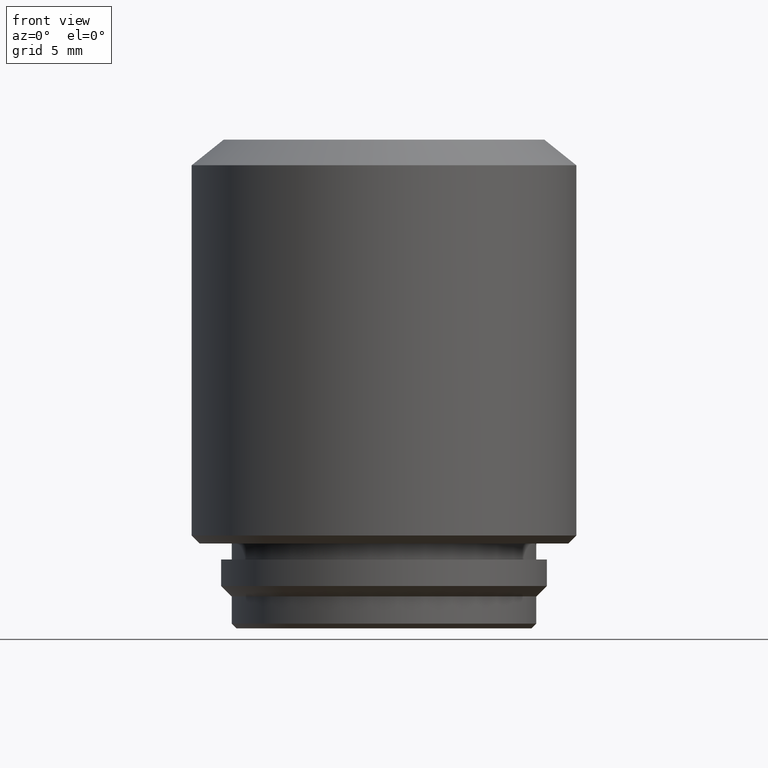
[diagram: clean part render]
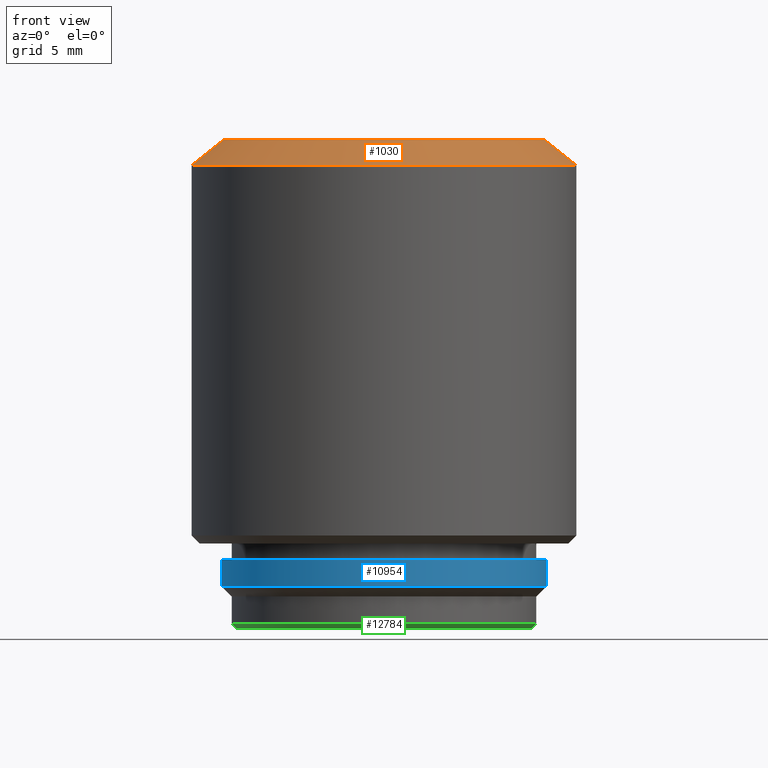
[diagram: same view with three faces highlighted in distinct colors, each labeled with its STEP entity id]
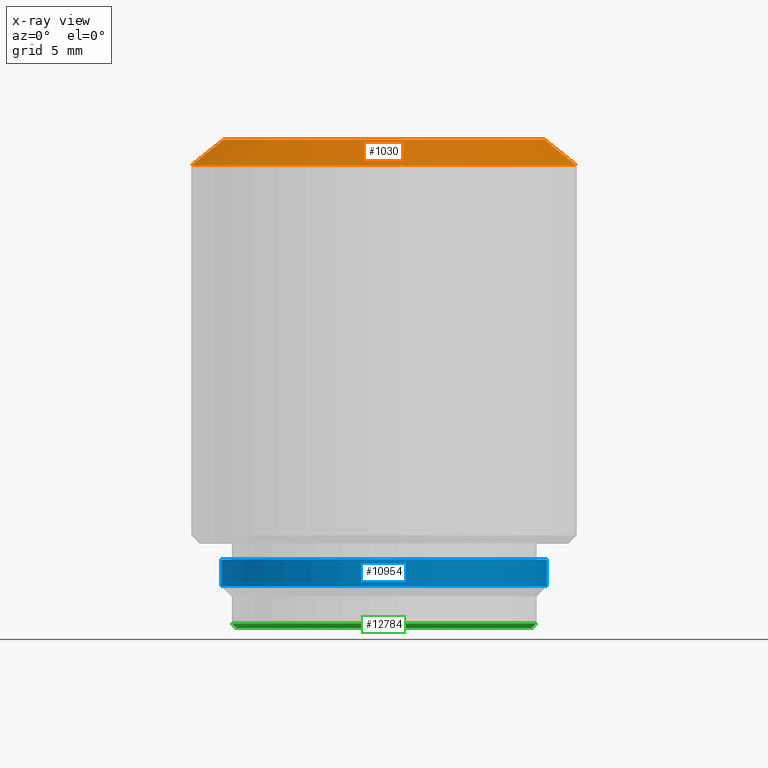
[diagram: x-ray of the same camera — body ghosted, the three highlighted faces saturated]
A machine part, front view with three faces highlighted in distinct colors.
The next image is the same camera in x-ray (body ghosted, the three faces saturated) — at least one of them is partly hidden behind the body in this view.
Their STEP definitions:

[orange] entity #1030 — the highlighted conical surface has half-angle 51.34 deg.
#41 = LINE ( 'NONE', #3168, #11453 ) ;
#1030 = ADVANCED_FACE ( 'NONE', ( #14388 ), #14267, .T. ) ;
#1141 = CIRCLE ( 'NONE', #19206, 10.00000000000000000 ) ;
#1384 = CARTESIAN_POINT ( 'NONE',  ( -10.00000000000000000, 0.000000000000000000, 30.50000000000000000 ) ) ;
#2816 = VECTOR ( 'NONE', #2929, 1000.000000000000114 ) ;
#2929 = DIRECTION ( 'NONE',  ( -0.7808688094430298321, 0.000000000000000000, -0.6246950475544248427 ) ) ;
#3168 = CARTESIAN_POINT ( 'NONE',  ( 10.00000000000000000, 1.224646799147353256E-15, 30.50000000000000000 ) ) ;
#3615 = CARTESIAN_POINT ( 'NONE',  ( 11.99999999999999822, 1.469576158976823750E-15, 28.89999999999999858 ) ) ;
#3854 = EDGE_LOOP ( 'NONE', ( #18130, #8231, #10289, #8056 ) ) ;
#5187 = DIRECTION ( 'NONE',  ( 1.000000000000000000, 0.000000000000000000, 0.000000000000000000 ) ) ;
#5225 = AXIS2_PLACEMENT_3D ( 'NONE', #7060, #11545, #9895 ) ;
#5971 = LINE ( 'NONE', #19214, #2816 ) ;
#6206 = DIRECTION ( 'NONE',  ( 0.7808688094430298321, 9.562884880384109840E-17, -0.6246950475544248427 ) ) ;
#6798 = EDGE_CURVE ( 'NONE', #17699, #12236, #41, .T. ) ;
#7060 = CARTESIAN_POINT ( 'NONE',  ( 0.000000000000000000, 0.000000000000000000, 30.50000000000000000 ) ) ;
#8056 = ORIENTED_EDGE ( 'NONE', *, *, #14443, .F. ) ;
#8130 = CARTESIAN_POINT ( 'NONE',  ( 10.00000000000000000, 1.347111479062088602E-15, 30.50000000000000000 ) ) ;
#8231 = ORIENTED_EDGE ( 'NONE', *, *, #14201, .F. ) ;
#8590 = CARTESIAN_POINT ( 'NONE',  ( 0.000000000000000000, 0.000000000000000000, 28.89999999999999858 ) ) ;
#8877 = DIRECTION ( 'NONE',  ( 1.000000000000000000, 0.000000000000000000, 0.000000000000000000 ) ) ;
#9895 = DIRECTION ( 'NONE',  ( -1.000000000000000000, 0.000000000000000000, 0.000000000000000000 ) ) ;
#10289 = ORIENTED_EDGE ( 'NONE', *, *, #18898, .T. ) ;
#10702 = VERTEX_POINT ( 'NONE', #1384 ) ;
#10849 = CARTESIAN_POINT ( 'NONE',  ( 0.000000000000000000, 0.000000000000000000, 30.50000000000000000 ) ) ;
#11301 = VERTEX_POINT ( 'NONE', #18858 ) ;
#11453 = VECTOR ( 'NONE', #6206, 1000.000000000000114 ) ;
#11545 = DIRECTION ( 'NONE',  ( 0.000000000000000000, 0.000000000000000000, -1.000000000000000000 ) ) ;
#12065 = CIRCLE ( 'NONE', #14560, 12.00000000000000000 ) ;
#12236 = VERTEX_POINT ( 'NONE', #3615 ) ;
#14201 = EDGE_CURVE ( 'NONE', #10702, #17699, #1141, .T. ) ;
#14267 = CONICAL_SURFACE ( 'NONE', #5225, 10.00000000000000000, 0.8960553845713431498 ) ;
#14388 = FACE_OUTER_BOUND ( 'NONE', #3854, .T. ) ;
#14443 = EDGE_CURVE ( 'NONE', #12236, #11301, #12065, .T. ) ;
#14560 = AXIS2_PLACEMENT_3D ( 'NONE', #8590, #16192, #8877 ) ;
#16192 = DIRECTION ( 'NONE',  ( 0.000000000000000000, 0.000000000000000000, -1.000000000000000000 ) ) ;
#16791 = DIRECTION ( 'NONE',  ( 0.000000000000000000, 0.000000000000000000, 1.000000000000000000 ) ) ;
#17699 = VERTEX_POINT ( 'NONE', #8130 ) ;
#18130 = ORIENTED_EDGE ( 'NONE', *, *, #6798, .F. ) ;
#18858 = CARTESIAN_POINT ( 'NONE',  ( -11.99999999999999822, 0.000000000000000000, 28.89999999999999858 ) ) ;
#18898 = EDGE_CURVE ( 'NONE', #10702, #11301, #5971, .T. ) ;
#19206 = AXIS2_PLACEMENT_3D ( 'NONE', #10849, #16791, #5187 ) ;
#19214 = CARTESIAN_POINT ( 'NONE',  ( -10.00000000000000000, 0.000000000000000000, 30.50000000000000000 ) ) ;

[blue] entity #10954 — the highlighted cylindrical surface (partial cylindrical patch) has radius 10.16 mm, axis along (0, 0, -1).
#517 = DIRECTION ( 'NONE',  ( 0.000000000000000000, 0.000000000000000000, -1.000000000000000000 ) ) ;
#1690 = DIRECTION ( 'NONE',  ( 0.000000000000000000, 0.000000000000000000, 1.000000000000000000 ) ) ;
#2529 = ORIENTED_EDGE ( 'NONE', *, *, #16590, .T. ) ;
#2868 = CARTESIAN_POINT ( 'NONE',  ( 0.000000000000000000, 0.000000000000000000, 4.299999999999999822 ) ) ;
#3081 = VERTEX_POINT ( 'NONE', #9122 ) ;
#3455 = ORIENTED_EDGE ( 'NONE', *, *, #9780, .T. ) ;
#3496 = CARTESIAN_POINT ( 'NONE',  ( 0.000000000000000000, 0.000000000000000000, 2.649999999999999911 ) ) ;
#4047 = CIRCLE ( 'NONE', #8427, 10.16000000000000014 ) ;
#4131 = CARTESIAN_POINT ( 'NONE',  ( -10.16000000000000014, 1.244241147933710864E-15, 2.649999999999999911 ) ) ;
#4667 = DIRECTION ( 'NONE',  ( 0.000000000000000000, 0.000000000000000000, 1.000000000000000000 ) ) ;
#4991 = AXIS2_PLACEMENT_3D ( 'NONE', #17952, #14947, #12115 ) ;
#5818 = CIRCLE ( 'NONE', #8318, 10.16000000000000014 ) ;
#8044 = LINE ( 'NONE', #13993, #18282 ) ;
#8318 = AXIS2_PLACEMENT_3D ( 'NONE', #3496, #4667, #9459 ) ;
#8427 = AXIS2_PLACEMENT_3D ( 'NONE', #2868, #1690, #16242 ) ;
#9122 = CARTESIAN_POINT ( 'NONE',  ( 10.16000000000000014, 0.000000000000000000, 2.649999999999999911 ) ) ;
#9459 = DIRECTION ( 'NONE',  ( -1.000000000000000000, 0.000000000000000000, 0.000000000000000000 ) ) ;
#9780 = EDGE_CURVE ( 'NONE', #11996, #3081, #5818, .T. ) ;
#10954 = ADVANCED_FACE ( 'NONE', ( #15043 ), #11920, .T. ) ;
#11489 = CARTESIAN_POINT ( 'NONE',  ( 10.16000000000000014, 1.244241147933710864E-15, 4.299999999999999822 ) ) ;
#11920 = CYLINDRICAL_SURFACE ( 'NONE', #4991, 10.16000000000000014 ) ;
#11996 = VERTEX_POINT ( 'NONE', #4131 ) ;
#12115 = DIRECTION ( 'NONE',  ( -1.000000000000000000, 0.000000000000000000, 0.000000000000000000 ) ) ;
#13872 = EDGE_CURVE ( 'NONE', #14848, #3081, #8044, .T. ) ;
#13993 = CARTESIAN_POINT ( 'NONE',  ( 10.16000000000000014, 1.244241147933710864E-15, 5.299999999999999822 ) ) ;
#14000 = LINE ( 'NONE', #15461, #15882 ) ;
#14848 = VERTEX_POINT ( 'NONE', #11489 ) ;
#14947 = DIRECTION ( 'NONE',  ( 0.000000000000000000, 0.000000000000000000, -1.000000000000000000 ) ) ;
#15043 = FACE_OUTER_BOUND ( 'NONE', #18608, .T. ) ;
#15461 = CARTESIAN_POINT ( 'NONE',  ( -10.16000000000000014, 0.000000000000000000, 5.299999999999999822 ) ) ;
#15882 = VECTOR ( 'NONE', #517, 1000.000000000000000 ) ;
#16242 = DIRECTION ( 'NONE',  ( -1.000000000000000000, 0.000000000000000000, 0.000000000000000000 ) ) ;
#16444 = VERTEX_POINT ( 'NONE', #16527 ) ;
#16527 = CARTESIAN_POINT ( 'NONE',  ( -10.16000000000000014, 0.000000000000000000, 4.299999999999999822 ) ) ;
#16590 = EDGE_CURVE ( 'NONE', #16444, #11996, #14000, .T. ) ;
#16715 = ORIENTED_EDGE ( 'NONE', *, *, #13872, .F. ) ;
#17097 = DIRECTION ( 'NONE',  ( 0.000000000000000000, 0.000000000000000000, -1.000000000000000000 ) ) ;
#17234 = EDGE_CURVE ( 'NONE', #16444, #14848, #4047, .T. ) ;
#17746 = ORIENTED_EDGE ( 'NONE', *, *, #17234, .F. ) ;
#17952 = CARTESIAN_POINT ( 'NONE',  ( 0.000000000000000000, 0.000000000000000000, 5.299999999999999822 ) ) ;
#18282 = VECTOR ( 'NONE', #17097, 1000.000000000000000 ) ;
#18608 = EDGE_LOOP ( 'NONE', ( #16715, #17746, #2529, #3455 ) ) ;

[green] entity #12784 — the highlighted conical surface has half-angle 45 deg.
#343 = DIRECTION ( 'NONE',  ( 0.000000000000000000, 0.000000000000000000, -1.000000000000000000 ) ) ;
#2353 = EDGE_CURVE ( 'NONE', #3731, #11248, #15155, .T. ) ;
#2715 = EDGE_CURVE ( 'NONE', #6388, #3731, #5804, .T. ) ;
#2772 = CONICAL_SURFACE ( 'NONE', #4341, 9.199999999999999289, 0.7853981633974476129 ) ;
#3073 = ORIENTED_EDGE ( 'NONE', *, *, #2715, .F. ) ;
#3731 = VERTEX_POINT ( 'NONE', #12438 ) ;
#4341 = AXIS2_PLACEMENT_3D ( 'NONE', #8628, #11643, #16229 ) ;
#5131 = CARTESIAN_POINT ( 'NONE',  ( 9.199999999999999289, 0.000000000000000000, 0.000000000000000000 ) ) ;
#5317 = DIRECTION ( 'NONE',  ( 0.000000000000000000, 0.000000000000000000, 1.000000000000000000 ) ) ;
#5701 = FACE_OUTER_BOUND ( 'NONE', #6198, .T. ) ;
#5804 = CIRCLE ( 'NONE', #8925, 9.199999999999999289 ) ;
#6198 = EDGE_LOOP ( 'NONE', ( #18704, #3073, #7801, #14517 ) ) ;
#6312 = DIRECTION ( 'NONE',  ( 1.000000000000000000, 0.000000000000000000, 0.000000000000000000 ) ) ;
#6388 = VERTEX_POINT ( 'NONE', #5131 ) ;
#7801 = ORIENTED_EDGE ( 'NONE', *, *, #14842, .T. ) ;
#8628 = CARTESIAN_POINT ( 'NONE',  ( 0.000000000000000000, 0.000000000000000000, 0.000000000000000000 ) ) ;
#8925 = AXIS2_PLACEMENT_3D ( 'NONE', #13729, #343, #6312 ) ;
#9387 = CIRCLE ( 'NONE', #16858, 9.500000000000000000 ) ;
#9631 = CARTESIAN_POINT ( 'NONE',  ( -9.500000000000007105, 1.163414459189986274E-15, 0.3000000000000069833 ) ) ;
#9901 = CARTESIAN_POINT ( 'NONE',  ( 0.000000000000000000, 0.000000000000000000, 0.3000000000000069833 ) ) ;
#10120 = DIRECTION ( 'NONE',  ( 0.7071067811865470176, 0.000000000000000000, 0.7071067811865480168 ) ) ;
#10547 = CARTESIAN_POINT ( 'NONE',  ( 9.500000000000007105, 0.000000000000000000, 0.3000000000000069833 ) ) ;
#11248 = VERTEX_POINT ( 'NONE', #9631 ) ;
#11265 = DIRECTION ( 'NONE',  ( 1.000000000000000000, 0.000000000000000000, 0.000000000000000000 ) ) ;
#11643 = DIRECTION ( 'NONE',  ( 0.000000000000000000, 0.000000000000000000, 1.000000000000000000 ) ) ;
#12438 = CARTESIAN_POINT ( 'NONE',  ( -9.199999999999999289, 1.145044757202775647E-15, 0.000000000000000000 ) ) ;
#12697 = VECTOR ( 'NONE', #10120, 1000.000000000000000 ) ;
#12784 = ADVANCED_FACE ( 'NONE', ( #5701 ), #2772, .T. ) ;
#12943 = CARTESIAN_POINT ( 'NONE',  ( 9.199999999999999289, 0.000000000000000000, 0.000000000000000000 ) ) ;
#13083 = VECTOR ( 'NONE', #18263, 1000.000000000000000 ) ;
#13729 = CARTESIAN_POINT ( 'NONE',  ( 0.000000000000000000, 0.000000000000000000, 0.000000000000000000 ) ) ;
#14096 = VERTEX_POINT ( 'NONE', #10547 ) ;
#14517 = ORIENTED_EDGE ( 'NONE', *, *, #18702, .F. ) ;
#14842 = EDGE_CURVE ( 'NONE', #6388, #14096, #17615, .T. ) ;
#15155 = LINE ( 'NONE', #17967, #13083 ) ;
#16229 = DIRECTION ( 'NONE',  ( 1.000000000000000000, 0.000000000000000000, 0.000000000000000000 ) ) ;
#16858 = AXIS2_PLACEMENT_3D ( 'NONE', #9901, #5317, #11265 ) ;
#17615 = LINE ( 'NONE', #12943, #12697 ) ;
#17967 = CARTESIAN_POINT ( 'NONE',  ( -9.199999999999999289, 1.126675055215564822E-15, 0.000000000000000000 ) ) ;
#18263 = DIRECTION ( 'NONE',  ( -0.7071067811865470176, 8.659560562354926695E-17, 0.7071067811865480168 ) ) ;
#18702 = EDGE_CURVE ( 'NONE', #11248, #14096, #9387, .T. ) ;
#18704 = ORIENTED_EDGE ( 'NONE', *, *, #2353, .F. ) ;